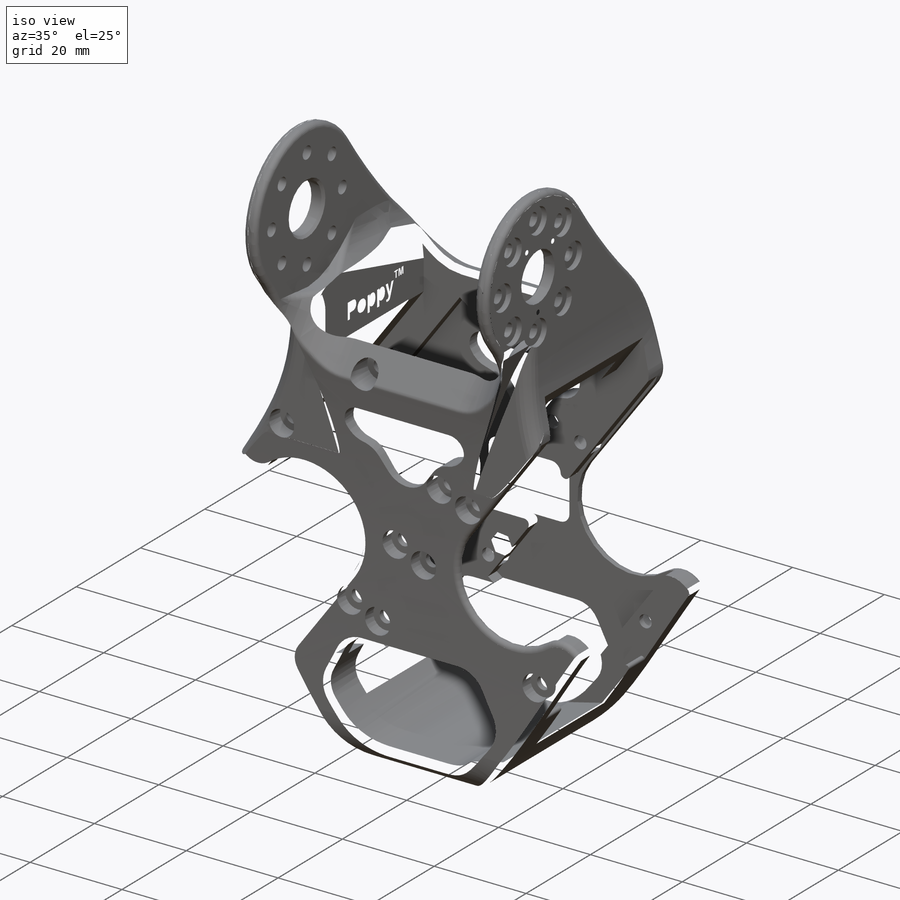
[diagram: iso view]
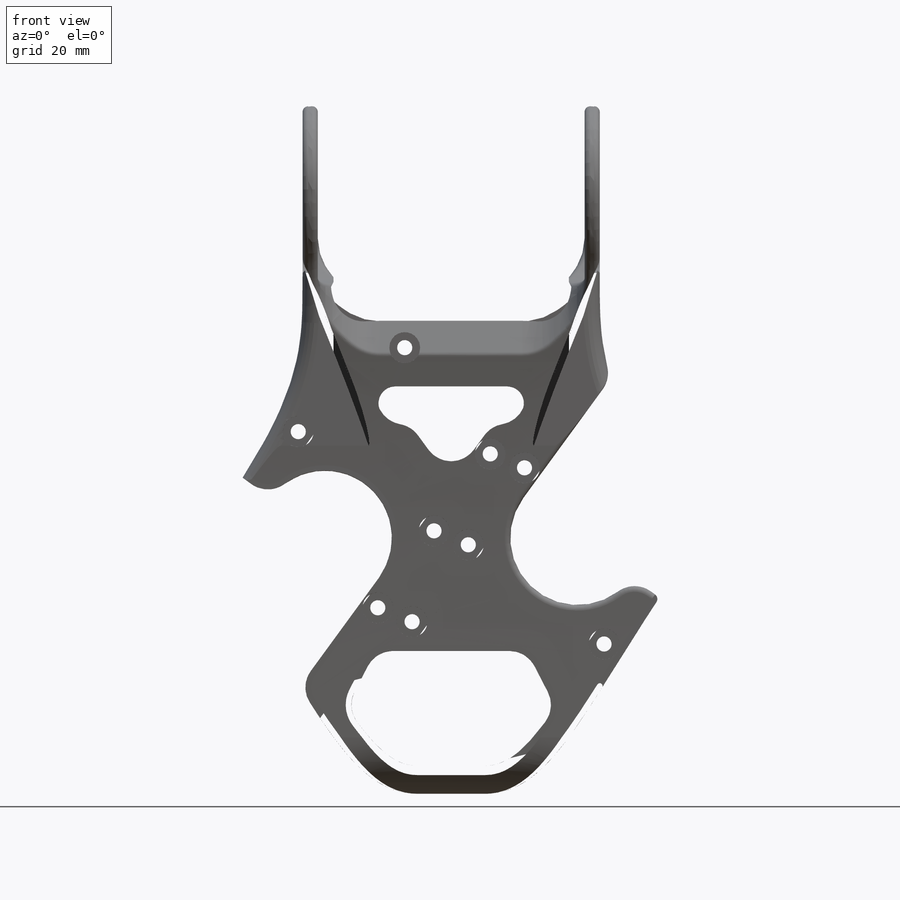
[diagram: front view]
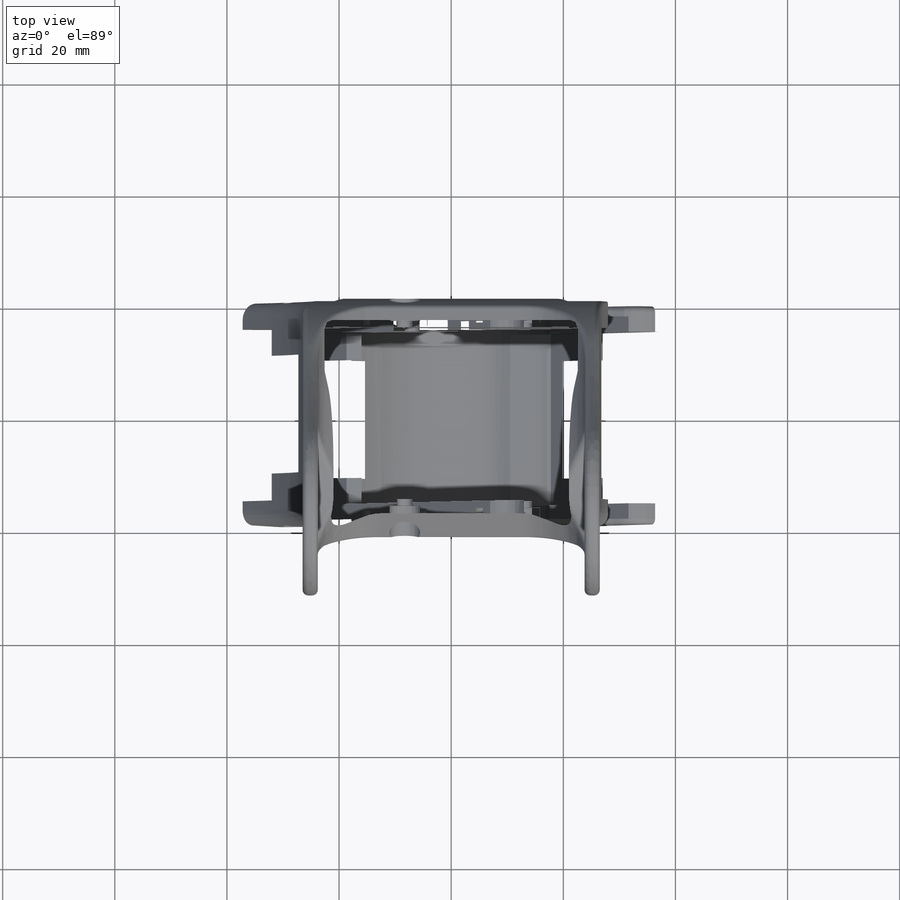
[diagram: top view]
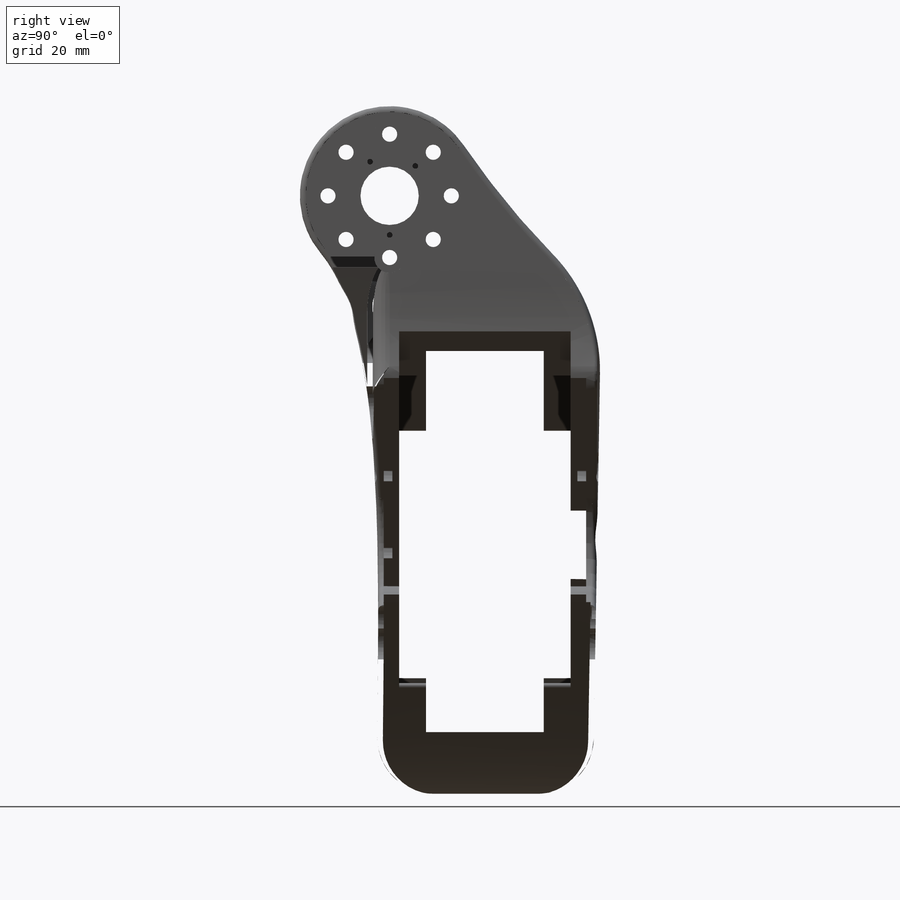
[diagram: right view]
SOLIDWORKS PART (.sldprt)
format: sldprt  version: not decoded by parser v0  size: 6,493,696 bytes
history: native  units: mm
features: sketch x46, fillet x25, cut_extrude x21, plane x17, chamfer x3, mirror x3, hole x3, material x1, extrude x1 (+13 scaffold rows collapsed; 4 parser-record rows omitted)
feature tree (137):
  scaffold x13  (default folders/planes/origin — collapsed)
  material  "Polyamide"
  plane  "Plan de face"
  plane  "Plan de dessus"
  plane  "Plan de droite"
  plane  "hip_x_middle_plane"  Offset=0mm
  sketch  "hip_x_position"  dims[c1.D1=~29.836873mm c2.D1=~1.748013deg c3.D1=35.6mm c3.D2=50.6mm c3.D3=12.0mm c3.D4=5.1mm c3.D5=6.0mm c3.D6=6.0mm c3.D7=5.1mm c3.D8=6.0mm c3.D9=5.1mm c3.D10=6.0mm c3.D11=5.1mm c4.D7=20.0deg c4.D9=20.0deg c5.D7=~66.78036mm c6.D7=~20.691139deg c7.D7=~54.812914mm c8.D7=~31.463059deg c9.D7=~67.403345mm c10.D7=25.0deg c10.D9=~6.666667deg c11.D9=~64.972441mm c12.D9=45.0deg c12.D10=1.5mm c12.D11=~99.488541mm c13.D10=87.0mm c13.D11=8.2mm c13.D12=16.2mm c14.D11=53.85mm c14.D12=8.2mm c15.D11=6.0mm c15.D12=20.0mm c15.D7=~19.264569mm c16.D7=35.0deg c16.D9=45.0deg c17.D9=~67.718517mm c18.D9=40.0deg c18.D11=5.5mm c18.D12=~47.074281mm c19.D12=~21.514974deg c20.D12=38.6mm c21.D12=~40.364537deg c22.D12=0.8mm c22.D13=12.0mm c22.D15=35.0deg c22.D17=40.0deg c22.D18=2.0mm c22.D10=~43.305011mm]
  sketch  "hip_y_center_position"  dims[D1=5.0mm D2=24.0mm]
  sketch  "abs_y_center_position"  dims[c1.D3=22.0mm c1.D1=12.0mm c1.D2=83.0mm c2.D1=12.0mm c2.D2=85.0mm]
  plane  "abs_y_symetric_plane"
  sketch  "motor_x_V_inclinaison"  dims[c1.D1=~58.92114mm c2.D1=30.0deg c2.D2=10.0mm c2.D3=20.0mm]
  plane  "r_hip_x_V_plane"
  plane  "l_hip_x_V_plane"
  parser-record x4  (decoder bookkeeping rows leaked as tree rows — omitted from the tree; the rows remain in map.json)
  sketch  "hip_x_motor_front_dimensions"  dims[c1.D1=22.0mm c1.D11=~5.075485mm c1.D12=2.7mm c1.D2=35.6mm c1.D3=50.6mm c1.D4=12.0mm c1.D5=33.0mm c1.D6=35.8mm c1.D7=24.4mm c1.D8=30.0mm c1.D9=17.0mm c1.D10=17.0mm c2.D11=4.5mm c2.D13=17.0mm c2.D14=6.0mm c2.D16=50.6mm c3.D16=180.0deg c3.D15=2.0]
  sketch  "r_hip_x_motor_lateral_dimensions"  dims[D1=35.5mm D2=4.5mm D3=15.0mm D4=22.0mm D5=41.0mm]
  sketch  "l_hip_x_motor_lateral_dimensions"
  plane  "hip_x_top_plane"
  sketch  "r_hip_x_top_dimensions"
  sketch  "abs_y_front_dimensions"  dims[c1.D1=22.0mm c1.D11=2.7mm c2.D1=22.0mm c2.D12=2.7mm c2.D15=16.0mm c2.D17=2.2mm c2.D18=8.0mm c2.D19=~0.854149mm c2.D20=10.0mm c2.D21=1.0mm c2.D2=35.6mm c2.D3=12.0mm c2.D4=33.0mm c2.D5=35.8mm c2.D6=24.4mm c2.D7=30.0mm c2.D8=17.0mm c2.D9=17.0mm c2.D10=4.5mm c3.D12=17.0mm c3.D13=6.0mm c3.D14=180.0deg c3.D2=35.6mm c3.D3=50.6mm c3.D4=12.0mm c3.D5=33.0mm c3.D6=35.8mm c3.D7=24.4mm c3.D8=30.0mm c3.D9=17.0mm c3.D10=17.0mm c3.D11=4.5mm c4.D13=17.0mm c4.D14=6.0mm c4.D15=180.0deg c4.D2=6.0mm c4.D3=50.6mm c5.D14=35.4mm c5.D19=~5.260984mm c6.D19=60.0deg c6.D20=2.0mm c6.D16=8.0]
  sketch  "abs_y_lateral_dimensions"  dims[D1=15.0mm D2=20.5mm D3=17.5mm D4=4.5mm D5=20.5mm]
  plane  "r_horn_abs_y_plane"
  plane  "l_horn_abs_y_plane"
  sketch  "hip_x_motors_symetric_shape"
  plane  "hip_x_horn_plane"
  sketch  "hip_x_lateral_room"  dims[D1=0.3mm D2=0.5mm D3=0.3mm D4=0.5mm D5=0.5mm D6=0.2mm]
  sketch  "abdomen_size"  dims[D1=96.0mm D2=31.0mm D3=12.0mm]
  sketch  "abdomen_motion"  dims[c1.D1=12.0mm c2.D1=55.0deg c2.D2=12.0mm c3.D2=15.0deg]
  sketch  "r_hip_x_top_room"  dims[D1=0.5mm D2=0.3mm D3=0.3mm]
  sketch  "l_hip_x_top_room"
  sketch  "Sketch8"  dims[c1.D4=~98.941184mm c1.D1=2.0mm c1.D2=3.0mm c1.D3=50.6mm c2.D3=1.0deg c3.D3=2.0mm c3.D4=3.0mm c3.D5=2.0mm c3.D6=10.0mm c3.D1=3.0mm c3.D2=12.0mm c4.D3=4.0mm c4.D4=1.5mm]
  extrude  "Boss-Extrude1"  Depth=70mm
  sketch  "Sketch10"  dims[c1.D1=2.0mm c1.D2=2.0mm c1.D3=2.0mm c2.D1=45.0mm c3.D1=50.0deg c3.D2=1.5mm c3.D3=1.5mm c3.D4=3.0mm c3.D5=1.0mm]
  cut_extrude  "Cut-Extrude1"  [1 undecoded]
  cut_extrude  "Cut-Extrude4"  [1 undecoded]
  sketch  "Sketch15"
  cut_extrude  "Cut-Extrude5"  [1 undecoded]
  sketch  "Sketch30"
  cut_extrude  "Cut-Extrude3"  [1 undecoded]
  sketch  "Sketch16"
  cut_extrude  "Cut-Extrude6"  [1 undecoded]
  chamfer  "Chamfer3"  Distance=6mm Angle=40deg
  fillet  "Fillet17"  Radius=30mm
  sketch  "Sketch31"  dims[D1=4.0mm D2=0.3mm]
  cut_extrude  "Cut-Extrude15"  [1 undecoded]
  cut_extrude  "Cut-Extrude17"  [1 undecoded]
  sketch  "Sketch17"  dims[c1.D1=1.0mm c1.D2=50.0mm c1.D4=50.0mm c2.D4=50.0deg c3.D4=50.0mm c4.D4=180.0deg c4.D5=50.0mm c5.D5=0.0deg c5.D3=2.0]
  cut_extrude  "Cut-Extrude7"  [1 undecoded]
  sketch  "Sketch38"
  cut_extrude  "Cut-Extrude22"  [1 undecoded]
  fillet  "Fillet19"  Radius=0.5mm
  fillet  "Fillet18"  Radius=5mm
  fillet  "Fillet20"  Radius=10mm
  plane  "Plane4"  Offset=10mm
  chamfer  "Chamfer4"  Distance=5.5mm
  sketch  "Sketch22"  dims[D1=0.2mm]
  cut_extrude  "Cut-Extrude9"  [1 undecoded]
  sketch  "Sketch41"  dims[D1=1.5mm]
  fillet  "Fillet28"  Radius=10mm
  fillet  "Fillet47"  Radius=10mm
  cut_extrude  "Cut-Extrude24"  [1 undecoded]
  fillet  "Fillet53"  Radius=1mm
  sketch  "Sketch23"  dims[c1.D1=22.0mm c1.D6=~63.57947mm c2.D1=1.5mm c2.D2=5.0mm c2.D3=20.0mm c2.D4=92.0mm c2.D5=~21.092849mm c3.D5=~58.77081deg c4.D5=21.0mm c4.D6=~44.753959mm c5.D6=30.0deg]
  cut_extrude  "Cut-Extrude10"  Depth=0.5mm
  mirror  "Mirror2"
  fillet  "Fillet30"  Radius=3mm
  hole  "CBORE for  Hex Socket Head Cap Screw2"  Diameter=2.2mm Depth=30.499mm
  sketch  "Sketch21"
  sketch  "Sketch20"  dims[hole-wizard template sketch: 27 standard entries collapsed; hole parameters kept: c8.Hole Depth=30.499mm c8.C'Bore Dia.=4.4mm c8.C'Bore Depth=8.1mm c8.Mid C'Sink Dia.=2.25mm c8.D6=~5.388154mm c8.Mid C'Sink Angle=90.0deg c8.D7=~14.816244mm c8.Drill Angle=118.0deg]
  mirror  "Mirror1"
  fillet  "Fillet35"  Radius=1mm
  fillet  "Fillet52"  Radius=1.5mm
  sketch  "Sketch33"  dims[c1.D3=27.0mm c1.D1=3.0mm c1.D2=5.0mm c2.D1=0.0mm]
  sketch  "Sketch25"
  cut_extrude  "Cut-Extrude19"  [1 undecoded]
  fillet  "Fillet31"  Radius=5mm
  fillet  "Fillet32"  Radius=5mm
  fillet  "Fillet33"  Radius=2mm
  sketch  "Sketch54"  dims[D1=20.0mm]
  sketch  "Sketch42"  dims[c1.D1=~29.509212mm c1.D2=27.5254mm c2.D1=42.0mm]
  cut_extrude  "Cut-Extrude25"  [1 undecoded]
  plane  "Plane6"
  plane  "Plane7"  Offset=10mm
  chamfer  "Chamfer2"  Distance=0.5mm Angle=45deg
  hole  "CBORE for M2.5 Hex Socket Head Cap Screw1"  Diameter=2.7mm Depth=24.999mm
  sketch  "Sketch35"
  sketch  "Sketch34"  dims[hole-wizard template sketch: 26 standard entries collapsed; hole parameters kept: c8.Hole Dia.=2.7mm c8.Hole Depth=24.999mm c8.C'Bore Dia.=5.5mm c8.C'Bore Depth=8.5mm c8.Mid C'Sink Dia.=2.75mm c8.D6=~5.388154mm c8.Mid C'Sink Angle=90.0deg c8.D7=~14.816244mm c8.Drill Angle=118.0deg]
  mirror  "Mirror3"
  sketch  "Sketch27"  dims[D1=11.0mm D2=3.5mm]
  cut_extrude  "Cut-Extrude14"  [1 undecoded]
  sketch  "Sketch40"  dims[D1=0.75mm D2=1.0mm]
  cut_extrude  "Cut-Extrude23"  Depth=1mm
  sketch  "Sketch43"  dims[c1.D1=~15.570928mm c1.D2=~14.893931mm c2.D1=21.5mm]
  cut_extrude  "Cut-Extrude26"  [1 undecoded]
  sketch  "PCB_extension"  dims[c1.D5=2.0mm c1.D1=28.2mm c1.D2=20.0mm c1.D3=7.5mm c2.D1=20.0mm c2.D2=28.2mm c2.D3=8.0mm c2.D4=24.0mm c2.D6=15.0mm c2.D7=6.0mm]
  sketch  "rotate_PCB"  dims[c1.D1=20.0mm c1.D2=28.2mm c1.D7=28.2mm c2.D7=0.0deg c2.D1=0.0mm c2.D2=0.0mm c2.D3=0.0mm c2.D4=0.0mm c2.D5=0.0mm c2.D6=2.0]
  sketch  "Sketch47"  dims[D1=0.3mm]
  cut_extrude  "Cut-Extrude28"  Depth=0.75mm
  sketch  "Sketch48"  dims[c1.D1=1.2mm c1.D2=13.0mm c1.D3=13.0mm c2.D2=13.0mm c2.D3=1.0mm]
  cut_extrude  "Cut-Extrude29"  [1 undecoded]
  fillet  "Fillet62"  Radius=2mm
  plane  "Plane8"  Offset=1.7mm
  plane  "Plane9"
  sketch  "Sketch49"  dims[D1=4.0mm]
  cut_extrude  "Cut-Extrude30"  Depth=1.5mm
  hole  "M2 Clearance Hole1"  Diameter=2.2mm Depth=4.378327mm
  sketch  "Sketch53"
  sketch  "Sketch51"  dims[hole-wizard template sketch: 60 standard entries collapsed; hole parameters kept: c18.Thru Hole Depth=~4.378327mm]
  fillet  "Fillet48"  Radius=1mm
  fillet  "Fillet39"  Radius=1mm
  fillet  "Fillet40"  Radius=1mm
  fillet  "Fillet50"  Radius=5mm
  fillet  "Fillet51"  Radius=1mm
  fillet  "Fillet49"  Radius=0.2mm
  fillet  "Fillet56"  Radius=13mm
  fillet  "Fillet59"  Radius=5mm
  fillet  "Fillet60"  Radius=2mm
  fillet  "Fillet61"  Radius=1mm
  fillet  "Fillet63"  Radius=1mm
  plane  "Plane10"  Offset=5mm
  sketch  "Sketch59"
  cut_extrude  "Poppy_trademark"  Depth=1mm
decode coverage: 70 of 102 modeling features carry decoded parameters
note: ~ marks probable driven/reference dimensions
note: 16 parameter values undecoded
summary: no parameter record found for 16 features
note: suppression state not decoded; provenance and decode notes live in map.json
